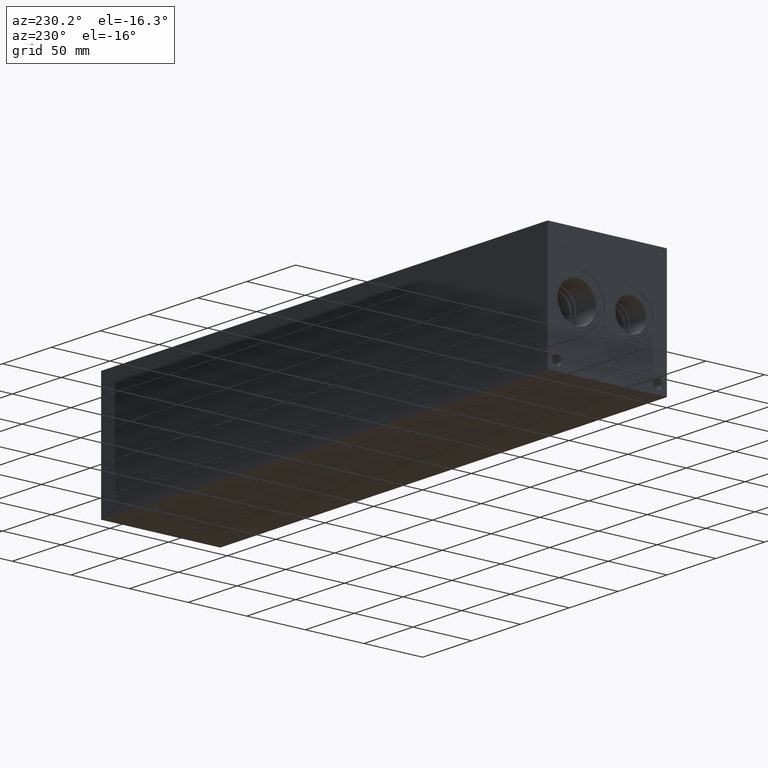
[diagram: clean part render]
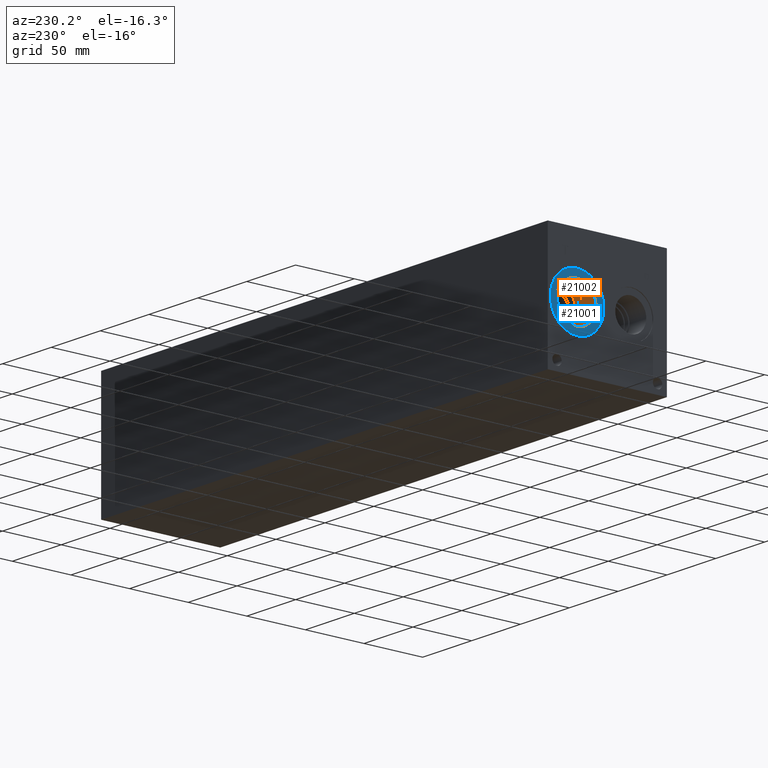
[diagram: same view with the hole feature highlighted: cylindrical wall and planar end face, labeled with their STEP entity ids]
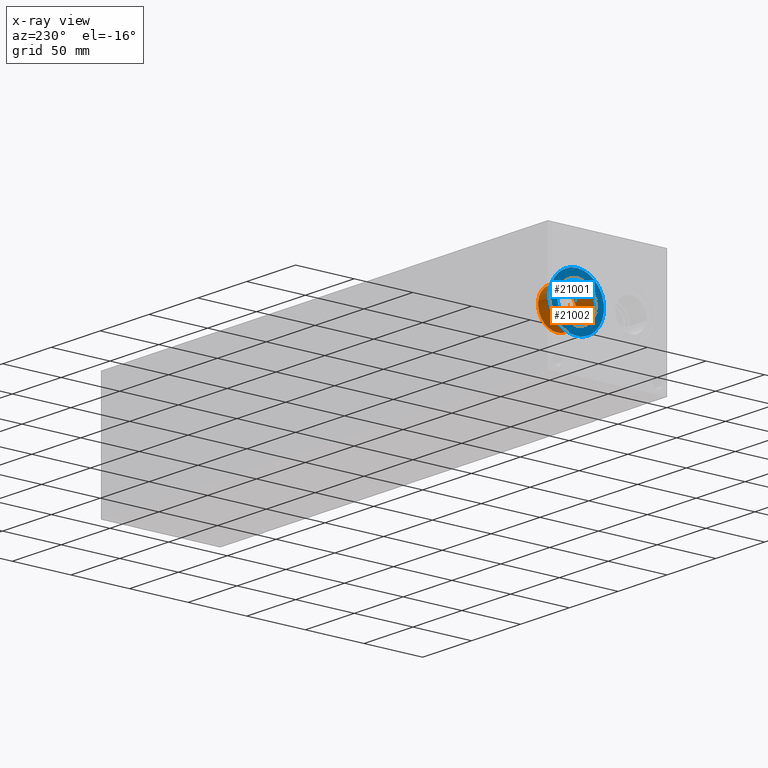
[diagram: x-ray of the same camera — body ghosted, the hole faces saturated]
A machine part, auxiliary view. The highlighted faces form one hole feature of diameter 33 mm: the cylindrical wall (entity #21002, orange) and its adjacent planar end face (entity #21001, blue) — they share a circular edge in the B-rep.
The next image is the same camera in x-ray (body ghosted, the hole faces saturated) — the bore reads through the body.
Wall:
#264=CYLINDRICAL_SURFACE('',#22385,16.5);
#1069=CIRCLE('',#22383,16.5);
#1070=CIRCLE('',#22384,16.5);
#1071=CIRCLE('',#22386,16.5);
#1072=CIRCLE('',#22387,16.5);
#2979=FACE_OUTER_BOUND('',#4244,.T.);
#4244=EDGE_LOOP('',(#18059,#18060,#18061,#18062,#18063,#18064));
#6076=LINE('',#36138,#7814);
#7814=VECTOR('',#26840,16.5);
#9753=VERTEX_POINT('',#36132);
#9754=VERTEX_POINT('',#36133);
#9755=VERTEX_POINT('',#36137);
#9756=VERTEX_POINT('',#36139);
#12622=EDGE_CURVE('',#9753,#9754,#1069,.T.);
#12623=EDGE_CURVE('',#9754,#9753,#1070,.T.);
#12624=EDGE_CURVE('',#9754,#9755,#6076,.T.);
#12625=EDGE_CURVE('',#9755,#9756,#1071,.T.);
#12626=EDGE_CURVE('',#9756,#9755,#1072,.T.);
#18059=ORIENTED_EDGE('',*,*,#12622,.F.);
#18060=ORIENTED_EDGE('',*,*,#12623,.F.);
#18061=ORIENTED_EDGE('',*,*,#12624,.T.);
#18062=ORIENTED_EDGE('',*,*,#12625,.T.);
#18063=ORIENTED_EDGE('',*,*,#12626,.T.);
#18064=ORIENTED_EDGE('',*,*,#12624,.F.);
#21002=ADVANCED_FACE('',(#2979),#264,.F.);
#22383=AXIS2_PLACEMENT_3D('',#36134,#26834,#26835);
#22384=AXIS2_PLACEMENT_3D('',#36135,#26836,#26837);
#22385=AXIS2_PLACEMENT_3D('',#36136,#26838,#26839);
#22386=AXIS2_PLACEMENT_3D('',#36140,#26841,#26842);
#22387=AXIS2_PLACEMENT_3D('',#36141,#26843,#26844);
#26834=DIRECTION('center_axis',(1.,0.,0.));
#26835=DIRECTION('ref_axis',(0.,0.,-1.));
#26836=DIRECTION('center_axis',(1.,0.,0.));
#26837=DIRECTION('ref_axis',(0.,0.,-1.));
#26838=DIRECTION('center_axis',(1.,0.,0.));
#26839=DIRECTION('ref_axis',(0.,0.,1.));
#26840=DIRECTION('',(1.,0.,0.));
#26841=DIRECTION('center_axis',(1.,0.,0.));
#26842=DIRECTION('ref_axis',(0.,0.,-1.));
#26843=DIRECTION('center_axis',(1.,0.,0.));
#26844=DIRECTION('ref_axis',(0.,0.,-1.));
#36132=CARTESIAN_POINT('',(0.7874,76.2,67.3));
#36133=CARTESIAN_POINT('',(0.7874,76.2,34.3));
#36134=CARTESIAN_POINT('Origin',(0.7874,76.2,50.8));
#36135=CARTESIAN_POINT('Origin',(0.7874,76.2,50.8));
#36136=CARTESIAN_POINT('Origin',(10.7315,76.2,50.8));
#36137=CARTESIAN_POINT('',(20.6756,76.2,34.3));
#36138=CARTESIAN_POINT('',(10.7315,76.2,34.3));
#36139=CARTESIAN_POINT('',(20.6756,76.2,67.3));
#36140=CARTESIAN_POINT('Origin',(20.6756,76.2,50.8));
#36141=CARTESIAN_POINT('Origin',(20.6756,76.2,50.8));
End face:
#1067=CIRCLE('',#22380,23.2791);
#1068=CIRCLE('',#22381,23.2791);
#1069=CIRCLE('',#22383,16.5);
#1070=CIRCLE('',#22384,16.5);
#1921=FACE_BOUND('',#4243,.T.);
#2978=FACE_OUTER_BOUND('',#4242,.T.);
#4242=EDGE_LOOP('',(#18055,#18056));
#4243=EDGE_LOOP('',(#18057,#18058));
#9751=VERTEX_POINT('',#36126);
#9752=VERTEX_POINT('',#36128);
#9753=VERTEX_POINT('',#36132);
#9754=VERTEX_POINT('',#36133);
#12620=EDGE_CURVE('',#9751,#9752,#1067,.T.);
#12621=EDGE_CURVE('',#9752,#9751,#1068,.T.);
#12622=EDGE_CURVE('',#9753,#9754,#1069,.T.);
#12623=EDGE_CURVE('',#9754,#9753,#1070,.T.);
#18055=ORIENTED_EDGE('',*,*,#12621,.F.);
#18056=ORIENTED_EDGE('',*,*,#12620,.F.);
#18057=ORIENTED_EDGE('',*,*,#12622,.T.);
#18058=ORIENTED_EDGE('',*,*,#12623,.T.);
#19338=PLANE('',#22382);
#21001=ADVANCED_FACE('',(#2978,#1921),#19338,.F.);
#22380=AXIS2_PLACEMENT_3D('',#36129,#26828,#26829);
#22381=AXIS2_PLACEMENT_3D('',#36130,#26830,#26831);
#22382=AXIS2_PLACEMENT_3D('',#36131,#26832,#26833);
#22383=AXIS2_PLACEMENT_3D('',#36134,#26834,#26835);
#22384=AXIS2_PLACEMENT_3D('',#36135,#26836,#26837);
#26828=DIRECTION('center_axis',(1.,0.,0.));
#26829=DIRECTION('ref_axis',(0.,0.,-1.));
#26830=DIRECTION('center_axis',(1.,0.,0.));
#26831=DIRECTION('ref_axis',(0.,0.,-1.));
#26832=DIRECTION('center_axis',(1.,0.,0.));
#26833=DIRECTION('ref_axis',(0.,0.,-1.));
#26834=DIRECTION('center_axis',(1.,0.,0.));
#26835=DIRECTION('ref_axis',(0.,0.,-1.));
#26836=DIRECTION('center_axis',(1.,0.,0.));
#26837=DIRECTION('ref_axis',(0.,0.,-1.));
#36126=CARTESIAN_POINT('',(0.7874,76.2,27.5209));
#36128=CARTESIAN_POINT('',(0.7874,76.2,74.0791));
#36129=CARTESIAN_POINT('Origin',(0.7874,76.2,50.8));
#36130=CARTESIAN_POINT('Origin',(0.7874,76.2,50.8));
#36131=CARTESIAN_POINT('Origin',(0.7874,76.2,67.3));
#36132=CARTESIAN_POINT('',(0.7874,76.2,67.3));
#36133=CARTESIAN_POINT('',(0.7874,76.2,34.3));
#36134=CARTESIAN_POINT('Origin',(0.7874,76.2,50.8));
#36135=CARTESIAN_POINT('Origin',(0.7874,76.2,50.8));